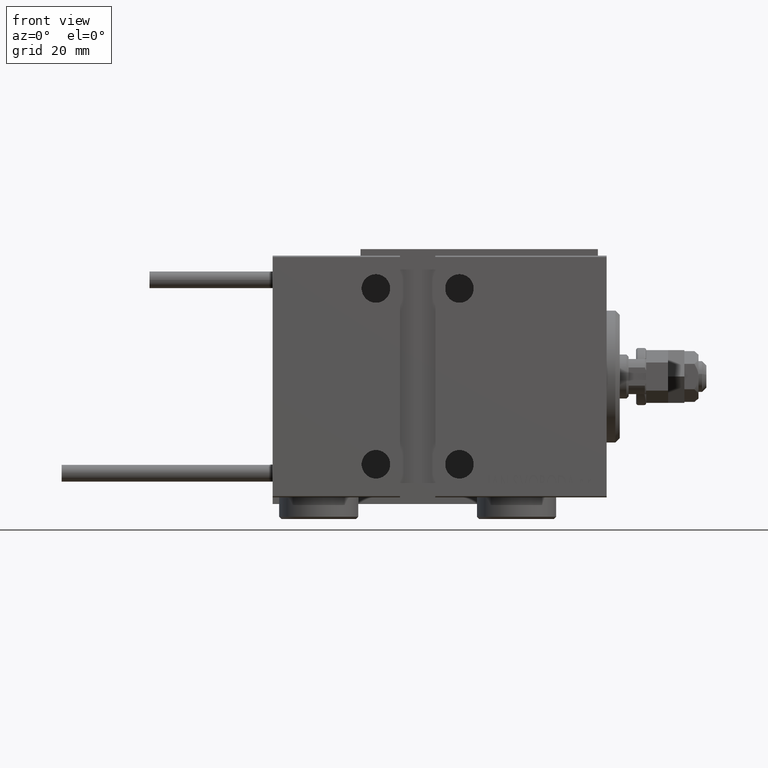
[diagram: clean part render]
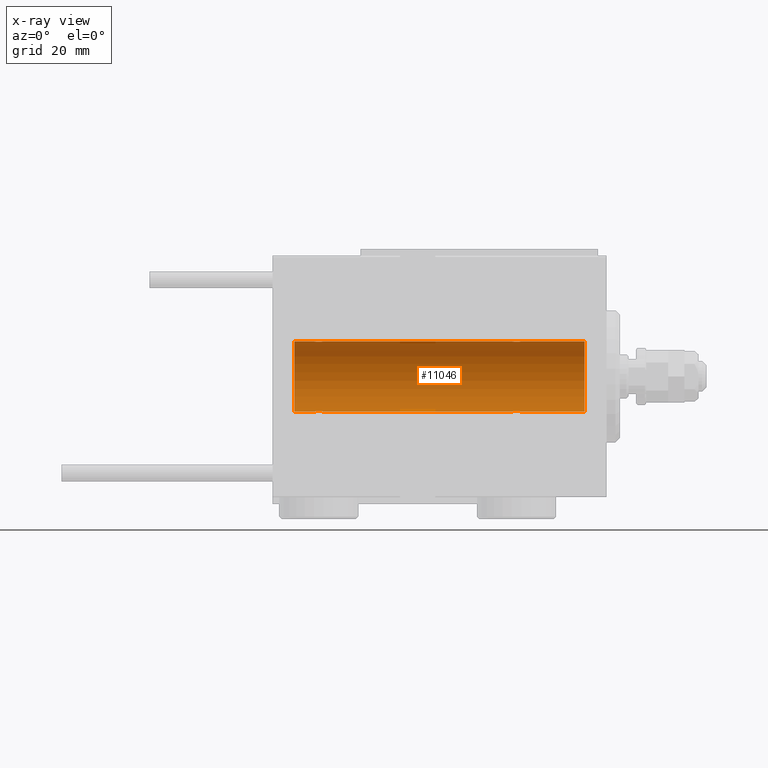
[diagram: x-ray — body ghosted, one internal face saturated and labeled with its STEP entity id]
A machine part, front view, then the same camera in x-ray: the body is ghosted and one INTERNAL B-rep face — a face not visible from any outside direction — is saturated and labeled: STEP entity #11046.
In plain terms, the highlighted cylindrical surface (edge-blend (fillet) strip) has radius 8 mm, axis along (1, 0, -0).
Its self-contained STEP definition (entity closure, byte-faithful):
#829 = CARTESIAN_POINT ( 'NONE',  ( 19.87285837165014257, -1.084361243153316723, 7.926301147147065684 ) ) ;
#1099 = CARTESIAN_POINT ( 'NONE',  ( 71.00000000000000000, 9.797174393178823685E-16, -7.999999999999998224 ) ) ;
#1349 = CARTESIAN_POINT ( 'NONE',  ( 19.25000000000000711, -0.1632520343443078226, 7.999999999999998224 ) ) ;
#1522 = CARTESIAN_POINT ( 'NONE',  ( 21.75000000000000000, 3.044820801201121485E-16, 7.999999999999998224 ) ) ;
#1603 = CARTESIAN_POINT ( 'NONE',  ( 19.40749082144730053, -0.6288424646912644800, 7.976670562295706368 ) ) ;
#2973 = EDGE_CURVE ( 'NONE', #25054, #11255, #45005, .T. ) ;
#3561 = CARTESIAN_POINT ( 'NONE',  ( 21.71715712019487654, -0.3279446529214867234, -7.994696267489720398 ) ) ;
#3689 = LINE ( 'NONE', #43218, #6572 ) ;
#4799 = EDGE_CURVE ( 'NONE', #6752, #43260, #38645, .T. ) ;
#4863 = CARTESIAN_POINT ( 'NONE',  ( 19.25000000000000711, -6.253246997522681077E-15, -7.999999999999998224 ) ) ;
#4925 = CARTESIAN_POINT ( 'NONE',  ( 66.75000000000000000, 3.826567769925454797E-16, 7.999999999999998224 ) ) ;
#5198 = VERTEX_POINT ( 'NONE', #24120 ) ;
#5204 = DIRECTION ( 'NONE',  ( -1.000000000000000000, -0.000000000000000000, -0.000000000000000000 ) ) ;
#5231 = CARTESIAN_POINT ( 'NONE',  ( 20.17169333885885507, -1.217212176555596992, 7.907113222863031865 ) ) ;
#5264 = ORIENTED_EDGE ( 'NONE', *, *, #26352, .T. ) ;
#5343 = LINE ( 'NONE', #8230, #28569 ) ;
#5497 = CARTESIAN_POINT ( 'NONE',  ( 65.17298283628254296, -1.217515856520244855, -7.907063872927295733 ) ) ;
#5544 = AXIS2_PLACEMENT_3D ( 'NONE', #45516, #9853, #25732 ) ;
#6140 = CARTESIAN_POINT ( 'NONE',  ( 71.00000000000000000, 0.000000000000000000, 7.999999999999998224 ) ) ;
#6572 = VECTOR ( 'NONE', #47913, 1000.000000000000000 ) ;
#6752 = VERTEX_POINT ( 'NONE', #25225 ) ;
#6856 = VERTEX_POINT ( 'NONE', #30918 ) ;
#7033 = EDGE_CURVE ( 'NONE', #43260, #25054, #8393, .T. ) ;
#7715 = CARTESIAN_POINT ( 'NONE',  ( 19.87056207267772123, -1.092287957405124077, -7.925333492638530153 ) ) ;
#7984 = CARTESIAN_POINT ( 'NONE',  ( 21.59250917855271013, -0.6288424646912643690, -7.976670562295706368 ) ) ;
#8084 = CARTESIAN_POINT ( 'NONE',  ( 66.59165033467903072, -0.6303134207467974148, 7.976551562999476985 ) ) ;
#8228 = CARTESIAN_POINT ( 'NONE',  ( 19.25000000000000355, -0.1654128203352942528, -7.999999999999996447 ) ) ;
#8230 = CARTESIAN_POINT ( 'NONE',  ( 71.00000000000000000, 9.797174393178823685E-16, -7.999999999999998224 ) ) ;
#8325 = CARTESIAN_POINT ( 'NONE',  ( 64.25000000000000000, -4.052102368803510290E-23, 7.999999999999998224 ) ) ;
#8393 = LINE ( 'NONE', #1099, #32798 ) ;
#8479 = CARTESIAN_POINT ( 'NONE',  ( 20.33559448851098850, -1.250104850332080408, -7.901723728054489193 ) ) ;
#8882 = CARTESIAN_POINT ( 'NONE',  ( 21.75000000000001066, -0.1654128203352890902, 8.000000000000001776 ) ) ;
#9122 = CARTESIAN_POINT ( 'NONE',  ( 66.26267005793690146, -0.9937204387496809677, -7.938174152191988853 ) ) ;
#9124 = CARTESIAN_POINT ( 'NONE',  ( 19.94455374345276155, -1.122809931695429198, 7.920878051565288125 ) ) ;
#9853 = DIRECTION ( 'NONE',  ( -1.000000000000000000, -0.000000000000000000, -0.000000000000000000 ) ) ;
#9963 = ORIENTED_EDGE ( 'NONE', *, *, #7033, .T. ) ;
#10538 = ORIENTED_EDGE ( 'NONE', *, *, #40927, .F. ) ;
#10670 = CARTESIAN_POINT ( 'NONE',  ( 5.000000000000004441, 0.000000000000000000, 0.000000000000000000 ) ) ;
#11046 = ADVANCED_FACE ( 'NONE', ( #14014 ), #26261, .F. ) ;
#11119 = B_SPLINE_CURVE_WITH_KNOTS ( 'NONE', 3,
 ( #47940, #1349, #20837, #1603, #36972, #12274, #13287, #829, #9124, #5231, #29156, #40872, #48437, #17207, #33056, #48951, #44528, #45038, #8882, #20592 ),
 .UNSPECIFIED., .F., .F.,
 ( 4, 2, 2, 2, 2, 2, 2, 2, 2, 4 ),
 ( 0.003914068143704959972, 0.004403205918210077729, 0.004892343692715195487, 0.005136912579967754799, 0.005381481467220314112, 0.005870619241725423196, 0.006359757016230531412, 0.006848894790735639629, 0.007338032565240748713, 0.007827170339745857797 ),
 .UNSPECIFIED. ) ;
#11255 = VERTEX_POINT ( 'NONE', #4863 ) ;
#11609 = CARTESIAN_POINT ( 'NONE',  ( 19.25000000000000711, -6.253246997522681077E-15, -7.999999999999998224 ) ) ;
#11858 = VECTOR ( 'NONE', #14718, 1000.000000000000000 ) ;
#11972 = CARTESIAN_POINT ( 'NONE',  ( 64.50041313324085479, -0.7680324342712208097, 7.963892330120033947 ) ) ;
#12058 = ORIENTED_EDGE ( 'NONE', *, *, #2973, .T. ) ;
#12129 = CARTESIAN_POINT ( 'NONE',  ( 21.05544625654725266, -1.122809931695433638, -7.920878051565290789 ) ) ;
#12274 = CARTESIAN_POINT ( 'NONE',  ( 19.67312100220859961, -0.9409612394163486826, 7.944680966683013601 ) ) ;
#12471 = CARTESIAN_POINT ( 'NONE',  ( 64.87285837165016744, -1.084361243153322940, 7.926301147147063908 ) ) ;
#13005 = LINE ( 'NONE', #26020, #24154 ) ;
#13029 = CARTESIAN_POINT ( 'NONE',  ( 65.33559448851097784, -1.250104850332083961, -7.901723728054485640 ) ) ;
#13169 = CARTESIAN_POINT ( 'NONE',  ( 71.00000000000000000, 0.000000000000000000, 0.000000000000000000 ) ) ;
#13287 = CARTESIAN_POINT ( 'NONE',  ( 19.73732994206310565, -0.9937204387496696434, 7.938174152191990629 ) ) ;
#13811 = VERTEX_POINT ( 'NONE', #22779 ) ;
#14014 = FACE_OUTER_BOUND ( 'NONE', #32847, .T. ) ;
#14065 = CARTESIAN_POINT ( 'NONE',  ( 64.40834966532098349, -0.6303134207468059635, -7.976551562999471656 ) ) ;
#14583 = DIRECTION ( 'NONE',  ( -1.000000000000000000, 0.000000000000000000, 0.000000000000000000 ) ) ;
#14718 = DIRECTION ( 'NONE',  ( -1.000000000000000000, -0.000000000000000000, -0.000000000000000000 ) ) ;
#15518 = CARTESIAN_POINT ( 'NONE',  ( 19.50158244334251378, -0.7695044314719124978, -7.963745725343517101 ) ) ;
#16716 = EDGE_CURVE ( 'NONE', #5198, #45010, #3689, .T. ) ;
#17207 = CARTESIAN_POINT ( 'NONE',  ( 21.12943792732230008, -1.092287957405114529, 7.925333492638531929 ) ) ;
#18584 = VERTEX_POINT ( 'NONE', #36750 ) ;
#18604 = CARTESIAN_POINT ( 'NONE',  ( 21.75000000000000355, 9.797173987965608855E-16, -7.999999999999998224 ) ) ;
#19227 = AXIS2_PLACEMENT_3D ( 'NONE', #10670, #14583, #26556 ) ;
#19540 = CARTESIAN_POINT ( 'NONE',  ( 66.74999999999998579, -0.1654128203352888959, 7.999999999999998224 ) ) ;
#20191 = DIRECTION ( 'NONE',  ( -1.000000000000000000, -0.000000000000000000, -0.000000000000000000 ) ) ;
#20293 = CARTESIAN_POINT ( 'NONE',  ( 64.94455374345275800, -1.122809931695436525, 7.920878051565286349 ) ) ;
#20488 = EDGE_CURVE ( 'NONE', #30382, #18584, #24170, .T. ) ;
#20542 = CARTESIAN_POINT ( 'NONE',  ( 66.12943792732227166, -1.092287957405119414, 7.925333492638526600 ) ) ;
#20592 = CARTESIAN_POINT ( 'NONE',  ( 21.75000000000000000, 3.044820801201121485E-16, 7.999999999999998224 ) ) ;
#20665 = CARTESIAN_POINT ( 'NONE',  ( 71.00000000000000000, 9.797174393178823685E-16, -7.999999999999998224 ) ) ;
#20837 = CARTESIAN_POINT ( 'NONE',  ( 19.28284287980511991, -0.3279446529214880002, 7.994696267489722175 ) ) ;
#21876 = CARTESIAN_POINT ( 'NONE',  ( 65.82830666114115559, -1.217212176555607872, -7.907113222863030089 ) ) ;
#22779 = CARTESIAN_POINT ( 'NONE',  ( 64.25000000000000000, -4.052102368803510290E-23, 7.999999999999998224 ) ) ;
#22826 = ORIENTED_EDGE ( 'NONE', *, *, #50335, .T. ) ;
#23425 = CARTESIAN_POINT ( 'NONE',  ( 65.33400394983989656, -1.249894643705222297, 7.901756981264366431 ) ) ;
#23589 = CARTESIAN_POINT ( 'NONE',  ( 21.26267005793690856, -0.9937204387496726410, -7.938174152191988853 ) ) ;
#24044 = B_SPLINE_CURVE_WITH_KNOTS ( 'NONE', 3,
 ( #8325, #28349, #47627, #31993, #11972, #24197, #27856, #12471, #20293, #40325, #23425, #43729, #35897, #20542, #36405, #36160, #8084, #39291, #19540, #4925 ),
 .UNSPECIFIED., .F., .F.,
 ( 4, 2, 2, 2, 2, 2, 2, 2, 2, 4 ),
 ( 0.003914068143704953900, 0.004403205918210113291, 0.004892343692715272682, 0.005136912579967838066, 0.005381481467220403450, 0.005870619241725495187, 0.006359757016230586923, 0.006848894790735679527, 0.007338032565240772132, 0.007827170339745864736 ),
 .UNSPECIFIED. ) ;
#24120 = CARTESIAN_POINT ( 'NONE',  ( 19.25000000000000355, -4.052102368803510290E-23, 7.999999999999998224 ) ) ;
#24154 = VECTOR ( 'NONE', #5204, 1000.000000000000000 ) ;
#24170 = CIRCLE ( 'NONE', #29131, 7.999999999999998224 ) ;
#24197 = CARTESIAN_POINT ( 'NONE',  ( 64.67312100220857474, -0.9409612394163545668, 7.944680966683010936 ) ) ;
#24258 = ORIENTED_EDGE ( 'NONE', *, *, #35383, .T. ) ;
#24518 = CARTESIAN_POINT ( 'NONE',  ( 64.25000000000000000, -9.361515949570352286E-15, -7.999999999999998224 ) ) ;
#25054 = VERTEX_POINT ( 'NONE', #18604 ) ;
#25225 = CARTESIAN_POINT ( 'NONE',  ( 66.75000000000000000, 9.797173987969553159E-16, -7.999999999999998224 ) ) ;
#25534 = CARTESIAN_POINT ( 'NONE',  ( 66.49958686675913100, -0.7680324342712109287, -7.963892330120037499 ) ) ;
#25732 = DIRECTION ( 'NONE',  ( 0.000000000000000000, 0.000000000000000000, 1.000000000000000000 ) ) ;
#26020 = CARTESIAN_POINT ( 'NONE',  ( 71.00000000000000000, 0.000000000000000000, 7.999999999999998224 ) ) ;
#26261 = CYLINDRICAL_SURFACE ( 'NONE', #5544, 7.999999999999998224 ) ;
#26352 = EDGE_CURVE ( 'NONE', #37729, #45010, #36658, .T. ) ;
#26556 = DIRECTION ( 'NONE',  ( 0.000000000000000000, 0.000000000000000000, 1.000000000000000000 ) ) ;
#27856 = CARTESIAN_POINT ( 'NONE',  ( 64.73732994206311275, -0.9937204387496767488, 7.938174152191988853 ) ) ;
#28007 = CARTESIAN_POINT ( 'NONE',  ( 21.75000000000000355, 9.797173987965608855E-16, -7.999999999999998224 ) ) ;
#28349 = CARTESIAN_POINT ( 'NONE',  ( 64.25000000000000000, -0.1632520343443091548, 7.999999999999998224 ) ) ;
#28569 = VECTOR ( 'NONE', #20191, 1000.000000000000000 ) ;
#28697 = EDGE_CURVE ( 'NONE', #30382, #6752, #32879, .T. ) ;
#28899 = CARTESIAN_POINT ( 'NONE',  ( 64.28333392022814508, -0.3297258132310580403, -7.994620111903502746 ) ) ;
#29037 = DIRECTION ( 'NONE',  ( -1.000000000000000000, 0.000000000000000000, 0.000000000000000000 ) ) ;
#29131 = AXIS2_PLACEMENT_3D ( 'NONE', #13169, #29037, #33455 ) ;
#29156 = CARTESIAN_POINT ( 'NONE',  ( 20.33400394983991433, -1.249894643705217412, 7.901756981264366431 ) ) ;
#29421 = CARTESIAN_POINT ( 'NONE',  ( 66.59250917855270302, -0.6288424646912635918, -7.976670562295704592 ) ) ;
#29928 = CARTESIAN_POINT ( 'NONE',  ( 64.25000000000000000, -9.361515949570352286E-15, -7.999999999999998224 ) ) ;
#30092 = VECTOR ( 'NONE', #40196, 1000.000000000000000 ) ;
#30249 = EDGE_CURVE ( 'NONE', #13811, #6856, #24044, .T. ) ;
#30382 = VERTEX_POINT ( 'NONE', #45259 ) ;
#30445 = ORIENTED_EDGE ( 'NONE', *, *, #20488, .F. ) ;
#30918 = CARTESIAN_POINT ( 'NONE',  ( 66.75000000000000000, 3.826567769925454797E-16, 7.999999999999998224 ) ) ;
#31591 = ORIENTED_EDGE ( 'NONE', *, *, #30249, .T. ) ;
#31891 = CARTESIAN_POINT ( 'NONE',  ( 20.82830666114115914, -1.217212176555602543, -7.907113222863031865 ) ) ;
#31993 = CARTESIAN_POINT ( 'NONE',  ( 64.40749082144731119, -0.6288424646912691429, 7.976670562295704592 ) ) ;
#32794 = CARTESIAN_POINT ( 'NONE',  ( 66.74999999999998579, -0.1632520343443076560, -8.000000000000000000 ) ) ;
#32798 = VECTOR ( 'NONE', #40391, 1000.000000000000000 ) ;
#32847 = EDGE_LOOP ( 'NONE', ( #30445, #50588, #51104, #9963, #12058, #24258, #5264, #49404, #22826, #40388, #31591, #10538 ) ) ;
#32879 = LINE ( 'NONE', #20665, #30092 ) ;
#33054 = CARTESIAN_POINT ( 'NONE',  ( 66.12714162834984677, -1.084361243153328047, -7.926301147147063908 ) ) ;
#33056 = CARTESIAN_POINT ( 'NONE',  ( 21.26815485876450751, -0.9994562523959109601, 7.938165420771274405 ) ) ;
#33313 = CARTESIAN_POINT ( 'NONE',  ( 64.25000000000002842, -0.1654128203352991100, -7.999999999999996447 ) ) ;
#33444 = LINE ( 'NONE', #6140, #11858 ) ;
#33455 = DIRECTION ( 'NONE',  ( 0.000000000000000000, 0.000000000000000000, 1.000000000000000000 ) ) ;
#33842 = CARTESIAN_POINT ( 'NONE',  ( 64.73184514123549604, -0.9994562523959209521, -7.938165420771274405 ) ) ;
#35302 = CARTESIAN_POINT ( 'NONE',  ( 21.12714162834986098, -1.084361243153320720, -7.926301147147069237 ) ) ;
#35383 = EDGE_CURVE ( 'NONE', #11255, #37729, #5343, .T. ) ;
#35897 = CARTESIAN_POINT ( 'NONE',  ( 65.82701716371744283, -1.217515856520240192, 7.907063872927293957 ) ) ;
#36055 = CARTESIAN_POINT ( 'NONE',  ( 5.000000000000004441, 9.797174393178823685E-16, -7.999999999999998224 ) ) ;
#36160 = CARTESIAN_POINT ( 'NONE',  ( 66.49841755665748622, -0.7695044314719109435, 7.963745725343518878 ) ) ;
#36405 = CARTESIAN_POINT ( 'NONE',  ( 66.26815485876453238, -0.9994562523959157341, 7.938165420771272629 ) ) ;
#36658 = CIRCLE ( 'NONE', #19227, 7.999999999999998224 ) ;
#36750 = CARTESIAN_POINT ( 'NONE',  ( 71.00000000000000000, 0.000000000000000000, 7.999999999999998224 ) ) ;
#36972 = CARTESIAN_POINT ( 'NONE',  ( 19.50041313324087611, -0.7680324342712150365, 7.963892330120037499 ) ) ;
#37729 = VERTEX_POINT ( 'NONE', #36055 ) ;
#38645 = B_SPLINE_CURVE_WITH_KNOTS ( 'NONE', 3,
 ( #45310, #32794, #49477, #29421, #25534, #40870, #9122, #33054, #49735, #21876, #48701, #13029, #5497, #48948, #33842, #49207, #14065, #28899, #33313, #29928 ),
 .UNSPECIFIED., .F., .F.,
 ( 4, 2, 2, 2, 2, 2, 2, 2, 2, 4 ),
 ( 0.003914068143704950431, 0.004403205918210086403, 0.004892343692715222375, 0.005136912579967791229, 0.005381481467220359215, 0.005870619241725457890, 0.006359757016230557433, 0.006848894790735656976, 0.007338032565240756519, 0.007827170339745856062 ),
 .UNSPECIFIED. ) ;
#39291 = CARTESIAN_POINT ( 'NONE',  ( 66.71666607977186914, -0.3297258132310484924, 7.994620111903502746 ) ) ;
#39463 = CARTESIAN_POINT ( 'NONE',  ( 21.75000000000000355, -0.1632520343443075173, -8.000000000000000000 ) ) ;
#39717 = CARTESIAN_POINT ( 'NONE',  ( 20.17298283628254651, -1.217515856520243966, -7.907063872927295733 ) ) ;
#40196 = DIRECTION ( 'NONE',  ( -1.000000000000000000, -0.000000000000000000, -0.000000000000000000 ) ) ;
#40325 = CARTESIAN_POINT ( 'NONE',  ( 65.17169333885885862, -1.217212176555603431, 7.907113222863028312 ) ) ;
#40388 = ORIENTED_EDGE ( 'NONE', *, *, #45530, .F. ) ;
#40391 = DIRECTION ( 'NONE',  ( -1.000000000000000000, -0.000000000000000000, -0.000000000000000000 ) ) ;
#40870 = CARTESIAN_POINT ( 'NONE',  ( 66.32687899779141105, -0.9409612394163470173, -7.944680966683013601 ) ) ;
#40872 = CARTESIAN_POINT ( 'NONE',  ( 20.66440551148902571, -1.250104850332073525, 7.901723728054483864 ) ) ;
#40927 = EDGE_CURVE ( 'NONE', #18584, #6856, #13005, .T. ) ;
#43218 = CARTESIAN_POINT ( 'NONE',  ( 71.00000000000000000, 0.000000000000000000, 7.999999999999998224 ) ) ;
#43260 = VERTEX_POINT ( 'NONE', #24518 ) ;
#43356 = CARTESIAN_POINT ( 'NONE',  ( 21.32687899779142171, -0.9409612394163514582, -7.944680966683015377 ) ) ;
#43729 = CARTESIAN_POINT ( 'NONE',  ( 65.66440551148900795, -1.250104850332079520, 7.901723728054485640 ) ) ;
#43878 = CARTESIAN_POINT ( 'NONE',  ( 19.28333392022814152, -0.3297258132310571521, -7.994620111903500970 ) ) ;
#44528 = CARTESIAN_POINT ( 'NONE',  ( 21.59165033467900230, -0.6303134207467927519, 7.976551562999469880 ) ) ;
#45005 = B_SPLINE_CURVE_WITH_KNOTS ( 'NONE', 3,
 ( #28007, #39463, #3561, #7984, #47531, #43356, #23589, #35302, #12129, #31891, #47793, #8479, #39717, #7715, #51189, #15518, #47274, #43878, #8228, #11609 ),
 .UNSPECIFIED., .F., .F.,
 ( 4, 2, 2, 2, 2, 2, 2, 2, 2, 4 ),
 ( 0.003914068143704946962, 0.004403205918210064719, 0.004892343692715182477, 0.005136912579967740922, 0.005381481467220300234, 0.005870619241725407583, 0.006359757016230515800, 0.006848894790735624016, 0.007338032565240732233, 0.007827170339745840449 ),
 .UNSPECIFIED. ) ;
#45010 = VERTEX_POINT ( 'NONE', #45197 ) ;
#45038 = CARTESIAN_POINT ( 'NONE',  ( 21.71666607977186203, -0.3297258132310466050, 7.994620111903502746 ) ) ;
#45197 = CARTESIAN_POINT ( 'NONE',  ( 5.000000000000004441, 0.000000000000000000, 7.999999999999998224 ) ) ;
#45259 = CARTESIAN_POINT ( 'NONE',  ( 71.00000000000000000, 9.797174393178823685E-16, -7.999999999999998224 ) ) ;
#45310 = CARTESIAN_POINT ( 'NONE',  ( 66.75000000000000000, 9.797173987969553159E-16, -7.999999999999998224 ) ) ;
#45516 = CARTESIAN_POINT ( 'NONE',  ( 71.00000000000000000, 0.000000000000000000, 0.000000000000000000 ) ) ;
#45530 = EDGE_CURVE ( 'NONE', #13811, #48639, #33444, .T. ) ;
#47274 = CARTESIAN_POINT ( 'NONE',  ( 19.40834966532100481, -0.6303134207468028549, -7.976551562999471656 ) ) ;
#47531 = CARTESIAN_POINT ( 'NONE',  ( 21.49958686675913100, -0.7680324342712168129, -7.963892330120035723 ) ) ;
#47627 = CARTESIAN_POINT ( 'NONE',  ( 64.28284287980513056, -0.3279446529214929407, 7.994696267489723951 ) ) ;
#47793 = CARTESIAN_POINT ( 'NONE',  ( 20.66599605016010344, -1.249894643705222963, -7.901756981264366431 ) ) ;
#47913 = DIRECTION ( 'NONE',  ( -1.000000000000000000, -0.000000000000000000, -0.000000000000000000 ) ) ;
#47940 = CARTESIAN_POINT ( 'NONE',  ( 19.25000000000000355, -4.052102368803510290E-23, 7.999999999999998224 ) ) ;
#48437 = CARTESIAN_POINT ( 'NONE',  ( 20.82701716371747125, -1.217515856520235751, 7.907063872927296622 ) ) ;
#48639 = VERTEX_POINT ( 'NONE', #1522 ) ;
#48701 = CARTESIAN_POINT ( 'NONE',  ( 65.66599605016010344, -1.249894643705226516, -7.901756981264361102 ) ) ;
#48948 = CARTESIAN_POINT ( 'NONE',  ( 64.87056207267771413, -1.092287957405123633, -7.925333492638526600 ) ) ;
#48951 = CARTESIAN_POINT ( 'NONE',  ( 21.49841755665747911, -0.7695044314719066136, 7.963745725343520654 ) ) ;
#49207 = CARTESIAN_POINT ( 'NONE',  ( 64.50158244334248536, -0.7695044314719156064, -7.963745725343513548 ) ) ;
#49404 = ORIENTED_EDGE ( 'NONE', *, *, #16716, .F. ) ;
#49477 = CARTESIAN_POINT ( 'NONE',  ( 66.71715712019489786, -0.3279446529214849471, -7.994696267489720398 ) ) ;
#49735 = CARTESIAN_POINT ( 'NONE',  ( 66.05544625654724200, -1.122809931695440744, -7.920878051565284572 ) ) ;
#50335 = EDGE_CURVE ( 'NONE', #5198, #48639, #11119, .T. ) ;
#50588 = ORIENTED_EDGE ( 'NONE', *, *, #28697, .T. ) ;
#51104 = ORIENTED_EDGE ( 'NONE', *, *, #4799, .T. ) ;
#51189 = CARTESIAN_POINT ( 'NONE',  ( 19.73184514123549604, -0.9994562523959170663, -7.938165420771272629 ) ) ;